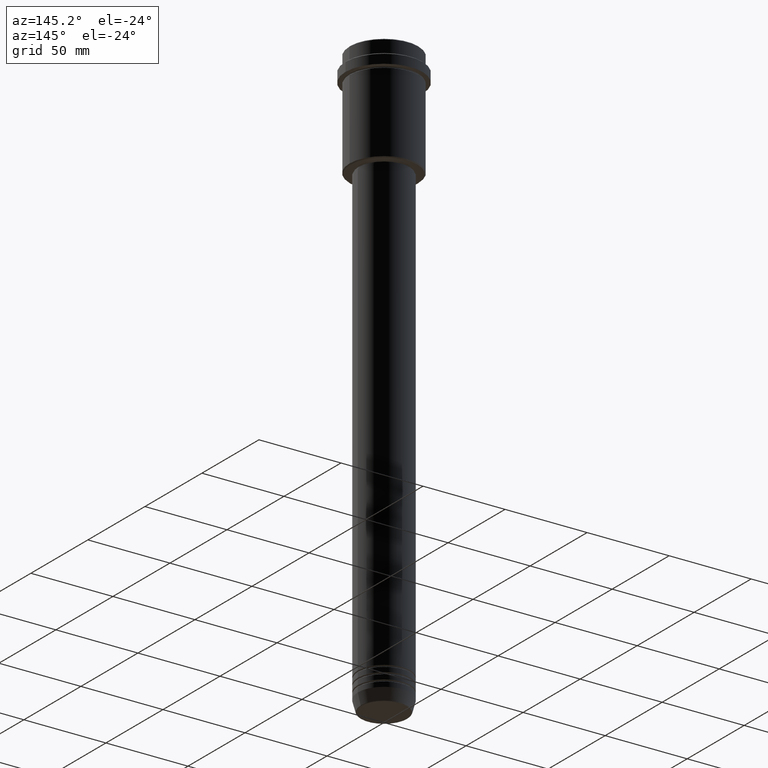
[diagram: clean part render]
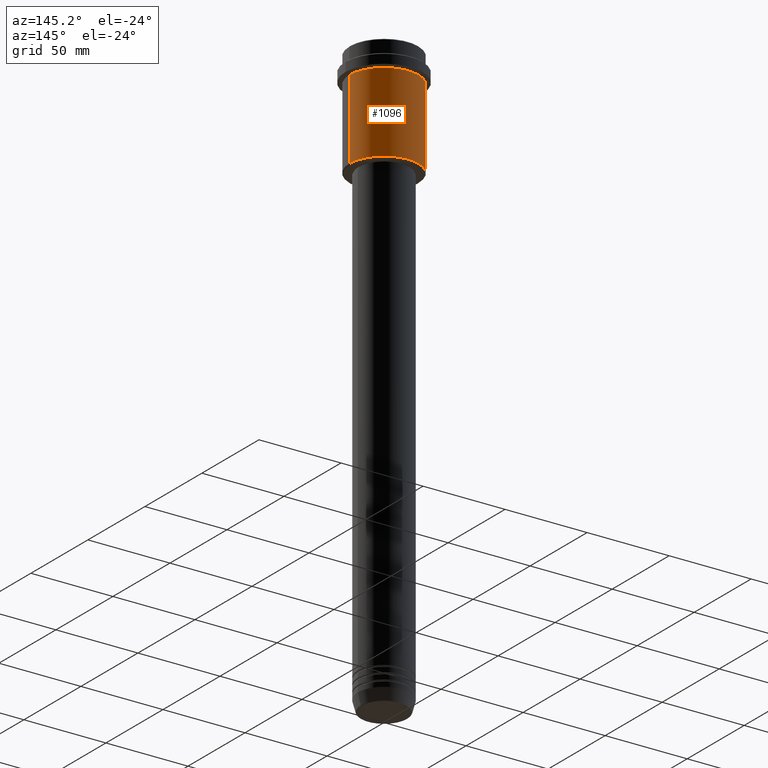
[diagram: same view with one face highlighted and labeled with its STEP entity id]
A machine part, auxiliary view. The second image highlights one B-rep face of the part: STEP entity #1096.
In plain terms, the highlighted cylindrical surface (partial cylindrical patch) has radius 21 mm, axis along (-0, -0, 1).
Its self-contained STEP definition (entity closure, byte-faithful):
#34 = EDGE_CURVE ( 'NONE', #161, #646, #521, .T. ) ;
#104 = LINE ( 'NONE', #425, #523 ) ;
#125 = VERTEX_POINT ( 'NONE', #832 ) ;
#133 = CARTESIAN_POINT ( 'NONE',  ( 0.000000000000000000, 0.000000000000000000, -64.50000000000000000 ) ) ;
#161 = VERTEX_POINT ( 'NONE', #1232 ) ;
#170 = DIRECTION ( 'NONE',  ( -0.000000000000000000, -0.000000000000000000, 1.000000000000000000 ) ) ;
#208 = CARTESIAN_POINT ( 'NONE',  ( -21.00000000000000000, 2.571758278209441661E-15, -16.00000000000000355 ) ) ;
#211 = EDGE_CURVE ( 'NONE', #646, #1368, #714, .T. ) ;
#339 = VECTOR ( 'NONE', #464, 1000.000000000000000 ) ;
#367 = CARTESIAN_POINT ( 'NONE',  ( -21.00000000000000000, 2.571758278209441661E-15, 0.000000000000000000 ) ) ;
#425 = CARTESIAN_POINT ( 'NONE',  ( 21.00000000000000000, 0.000000000000000000, 0.000000000000000000 ) ) ;
#439 = DIRECTION ( 'NONE',  ( -0.000000000000000000, -0.000000000000000000, 1.000000000000000000 ) ) ;
#455 = DIRECTION ( 'NONE',  ( -1.000000000000000000, 0.000000000000000000, 0.000000000000000000 ) ) ;
#464 = DIRECTION ( 'NONE',  ( -0.000000000000000000, -0.000000000000000000, 1.000000000000000000 ) ) ;
#494 = CYLINDRICAL_SURFACE ( 'NONE', #1412, 21.00000000000000000 ) ;
#502 = FACE_OUTER_BOUND ( 'NONE', #1390, .T. ) ;
#515 = CARTESIAN_POINT ( 'NONE',  ( 0.000000000000000000, 0.000000000000000000, -16.00000000000000355 ) ) ;
#521 = CIRCLE ( 'NONE', #1198, 21.00000000000000000 ) ;
#523 = VECTOR ( 'NONE', #439, 1000.000000000000000 ) ;
#526 = DIRECTION ( 'NONE',  ( 1.000000000000000000, 0.000000000000000000, 0.000000000000000000 ) ) ;
#569 = AXIS2_PLACEMENT_3D ( 'NONE', #515, #847, #526 ) ;
#646 = VERTEX_POINT ( 'NONE', #1249 ) ;
#660 = ORIENTED_EDGE ( 'NONE', *, *, #34, .T. ) ;
#714 = LINE ( 'NONE', #367, #339 ) ;
#832 = CARTESIAN_POINT ( 'NONE',  ( 21.00000000000000000, 0.000000000000000000, -16.00000000000000355 ) ) ;
#847 = DIRECTION ( 'NONE',  ( -0.000000000000000000, -0.000000000000000000, 1.000000000000000000 ) ) ;
#975 = DIRECTION ( 'NONE',  ( -0.000000000000000000, -0.000000000000000000, 1.000000000000000000 ) ) ;
#1091 = ORIENTED_EDGE ( 'NONE', *, *, #1214, .F. ) ;
#1092 = ORIENTED_EDGE ( 'NONE', *, *, #211, .T. ) ;
#1096 = ADVANCED_FACE ( 'NONE', ( #502 ), #494, .T. ) ;
#1198 = AXIS2_PLACEMENT_3D ( 'NONE', #133, #975, #455 ) ;
#1214 = EDGE_CURVE ( 'NONE', #125, #1368, #1391, .T. ) ;
#1232 = CARTESIAN_POINT ( 'NONE',  ( 21.00000000000000000, 0.000000000000000000, -64.50000000000000000 ) ) ;
#1234 = EDGE_CURVE ( 'NONE', #161, #125, #104, .T. ) ;
#1249 = CARTESIAN_POINT ( 'NONE',  ( -21.00000000000000000, 2.571758278209441661E-15, -64.50000000000000000 ) ) ;
#1261 = DIRECTION ( 'NONE',  ( 1.000000000000000000, 0.000000000000000000, 0.000000000000000000 ) ) ;
#1368 = VERTEX_POINT ( 'NONE', #208 ) ;
#1390 = EDGE_LOOP ( 'NONE', ( #660, #1092, #1091, #1415 ) ) ;
#1391 = CIRCLE ( 'NONE', #569, 21.00000000000000000 ) ;
#1392 = CARTESIAN_POINT ( 'NONE',  ( 0.000000000000000000, 0.000000000000000000, 0.000000000000000000 ) ) ;
#1412 = AXIS2_PLACEMENT_3D ( 'NONE', #1392, #170, #1261 ) ;
#1415 = ORIENTED_EDGE ( 'NONE', *, *, #1234, .F. ) ;